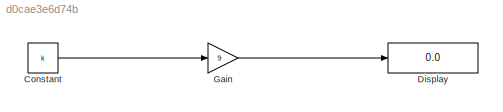
MODEL slx_d0cae3e6d74b
KIND model
CONFIG AbsTol = auto
CONFIG EnableMultiTasking = off
CONFIG FixedStep = auto
CONFIG MaxStep = auto
CONFIG MinStep = auto
CONFIG RelTol = 1e-3
CONFIG SampleTimeConstraint = Unconstrained
CONFIG SolverName = VariableStepAuto
CONFIG StartTime = 0.0
CONFIG StopTime = 10.0
BLOCK [Constant] Constant
  Value = k
BLOCK [Display] Display
  Decimation = 1
BLOCK [Gain] Gain
  Gain = 9
LINE Constant:1 -> Gain:1
LINE Gain:1 -> Display:1
